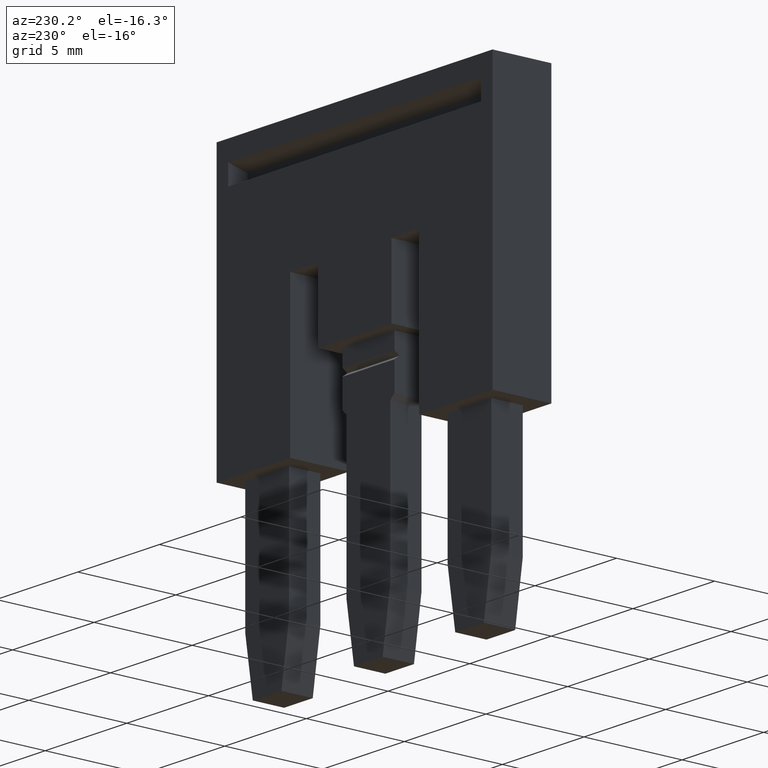
[diagram: clean part render]
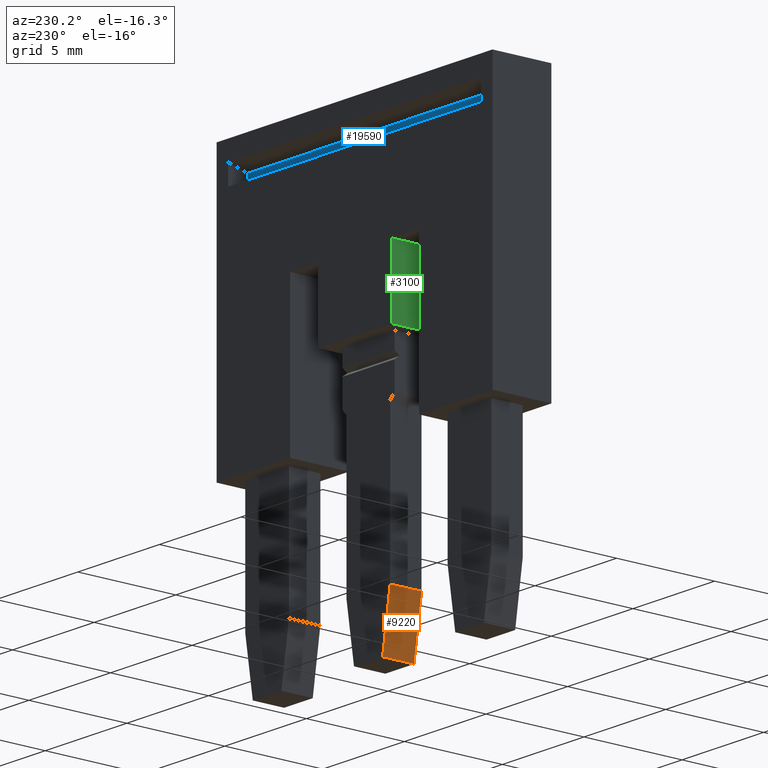
[diagram: same view with three faces highlighted in distinct colors, each labeled with its STEP entity id]
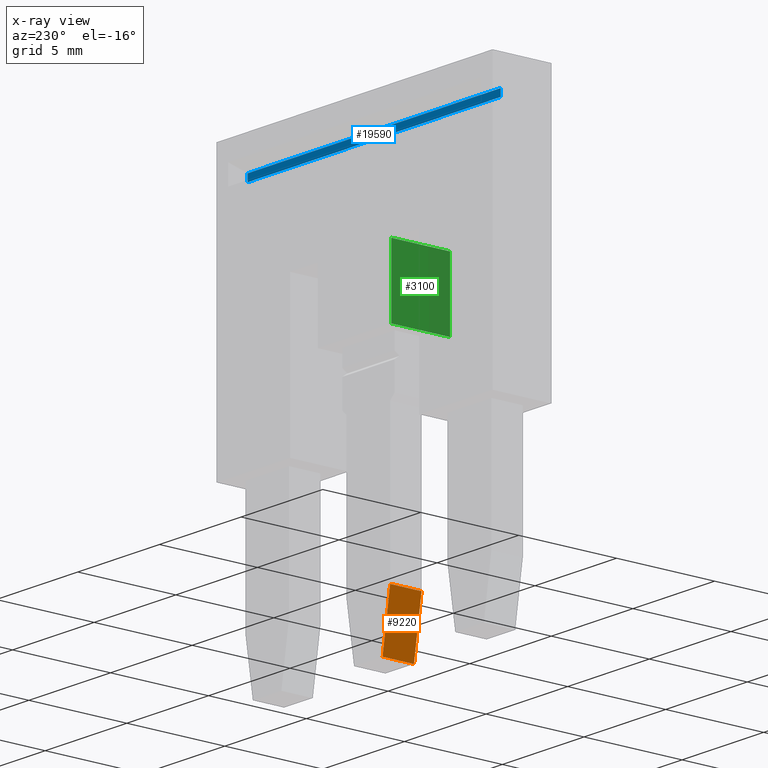
[diagram: x-ray of the same camera — body ghosted, the three highlighted faces saturated]
A machine part, auxiliary view with three faces highlighted in distinct colors.
The next image is the same camera in x-ray (body ghosted, the three faces saturated) — at least one of them is partly hidden behind the body in this view.
Their STEP definitions:

[orange] entity #9220 — the highlighted planar face has unit normal (0.9872, -0, 0.1594).
#7400=CARTESIAN_POINT('',(3.30716722169511,-29.2807420565088,
53.5999999999964));
#7410=VERTEX_POINT('',#7400);
#7440=CARTESIAN_POINT('',(3.30716722169511,-12.305124,56.3404020769704))
;
#7450=DIRECTION('',(-1.38777878078145E-17,0.987219178105449,
0.159368423411924));
#7460=VECTOR('',#7450,1.);
#7470=LINE('',#7440,#7460);
#7480=CARTESIAN_POINT('',(3.30716722169511,-32.1500000022916,
53.1368109480382));
#7490=VERTEX_POINT('',#7480);
#7500=EDGE_CURVE('',#7490,#7410,#7470,.T.);
#8720=CARTESIAN_POINT('',(4.9071672216951,-29.2807420565088,
53.5999999999964));
#8730=VERTEX_POINT('',#8720);
#8760=CARTESIAN_POINT('',(5.60716722168535,-29.2807420565088,
53.5999999999964));
#8770=DIRECTION('',(-1.,4.55169768507567E-15,-1.22464679914736E-16));
#8780=VECTOR('',#8770,1.);
#8790=LINE('',#8760,#8780);
#8800=EDGE_CURVE('',#8730,#7410,#8790,.T.);
#8990=CARTESIAN_POINT('',(3.47716482171337,-29.3736606429164,
53.5849999990342));
#9000=DIRECTION('',(8.46296364570585E-16,0.159368423411924,
-0.987219178105449));
#9010=DIRECTION('',(1.36619020727665E-16,-0.987219178105449,
-0.159368423411924));
#9020=AXIS2_PLACEMENT_3D('',#8990,#9000,#9010);
#9030=PLANE('',#9020);
#9040=CARTESIAN_POINT('',(5.60716722168535,-32.1500000022916,
53.1368109480382));
#9050=DIRECTION('',(1.,-2.26652267650109E-27,8.57252759406815E-16));
#9060=VECTOR('',#9050,1.);
#9070=LINE('',#9040,#9060);
#9080=CARTESIAN_POINT('',(4.9071672216951,-32.1500000022916,
53.1368109480382));
#9090=VERTEX_POINT('',#9080);
#9100=EDGE_CURVE('',#7490,#9090,#9070,.T.);
#9110=ORIENTED_EDGE('',*,*,#9100,.T.);
#9120=ORIENTED_EDGE('',*,*,#7500,.F.);
#9130=ORIENTED_EDGE('',*,*,#8800,.T.);
#9140=CARTESIAN_POINT('',(4.9071672216951,-12.305124,56.3404020769704));
#9150=DIRECTION('',(-1.38777878078145E-17,0.987219178105449,
0.159368423411924));
#9160=VECTOR('',#9150,1.);
#9170=LINE('',#9140,#9160);
#9180=EDGE_CURVE('',#9090,#8730,#9170,.T.);
#9190=ORIENTED_EDGE('',*,*,#9180,.T.);
#9200=EDGE_LOOP('',(#9190,#9130,#9120,#9110));
#9210=FACE_OUTER_BOUND('',#9200,.T.);
#9220=ADVANCED_FACE('',(#9210),#9030,.F.);

[blue] entity #19590 — the highlighted planar face has unit normal (0, -1, 0).
#18760=CARTESIAN_POINT('',(3.60716722168535,-10.7750000000004,
60.0099999999988));
#18770=VERTEX_POINT('',#18760);
#18800=CARTESIAN_POINT('',(3.60716722168535,-12.605124,60.0099999999988)
);
#18810=DIRECTION('',(4.22046870745915E-16,-1.,0.));
#18820=VECTOR('',#18810,1.);
#18830=LINE('',#18800,#18820);
#18840=CARTESIAN_POINT('',(3.60716722168535,-10.408974596216,
60.0099999999988));
#18850=VERTEX_POINT('',#18840);
#18860=EDGE_CURVE('',#18850,#18770,#18830,.T.);
#19110=CARTESIAN_POINT('',(3.60716722168535,-10.408974596216,
-0.0500000000000043));
#19120=DIRECTION('',(2.13821176807375E-50,1.22881688833192E-66,-1.));
#19130=VECTOR('',#19120,1.);
#19140=LINE('',#19110,#19130);
#19150=CARTESIAN_POINT('',(3.60716722168535,-10.408974596216,
44.5099999999988));
#19160=VERTEX_POINT('',#19150);
#19170=EDGE_CURVE('',#18850,#19160,#19140,.T.);
#19360=CARTESIAN_POINT('',(3.60716722168535,-10.7750000000004,
60.0099999999988));
#19370=DIRECTION('',(1.,4.22046870745915E-16,2.13821176807375E-50));
#19380=DIRECTION('',(-4.22046870745915E-16,1.,0.));
#19390=AXIS2_PLACEMENT_3D('',#19360,#19370,#19380);
#19400=PLANE('',#19390);
#19410=ORIENTED_EDGE('',*,*,#18860,.F.);
#19420=CARTESIAN_POINT('',(3.60716722168535,-10.7750000000004,
-0.0500000000000043));
#19430=DIRECTION('',(2.13821176807375E-50,0.,-1.));
#19440=VECTOR('',#19430,1.);
#19450=LINE('',#19420,#19440);
#19460=CARTESIAN_POINT('',(3.60716722168535,-10.7750000000004,
44.5099999999988));
#19470=VERTEX_POINT('',#19460);
#19480=EDGE_CURVE('',#18770,#19470,#19450,.T.);
#19490=ORIENTED_EDGE('',*,*,#19480,.F.);
#19500=CARTESIAN_POINT('',(3.60716722168534,-0.300000000000004,
44.5099999999988));
#19510=DIRECTION('',(-4.22046870745915E-16,1.,0.));
#19520=VECTOR('',#19510,1.);
#19530=LINE('',#19500,#19520);
#19540=EDGE_CURVE('',#19470,#19160,#19530,.T.);
#19550=ORIENTED_EDGE('',*,*,#19540,.F.);
#19560=ORIENTED_EDGE('',*,*,#19170,.T.);
#19570=EDGE_LOOP('',(#19560,#19550,#19490,#19410));
#19580=FACE_OUTER_BOUND('',#19570,.T.);
#19590=ADVANCED_FACE('',(#19580),#19400,.F.);

[green] entity #3100 — the highlighted planar face has unit normal (-1, -0, -0).
#1290=CARTESIAN_POINT('',(2.60716722168536,-15.4750000000004,
54.5099999999988));
#1300=VERTEX_POINT('',#1290);
#1470=CARTESIAN_POINT('',(5.60716722168537,-15.4750000000004,
54.5099999999988));
#1480=VERTEX_POINT('',#1470);
#1510=CARTESIAN_POINT('',(5.60716722168535,-15.4750000000004,
54.5099999999988));
#1520=DIRECTION('',(1.,0.,0.));
#1530=VECTOR('',#1520,1.);
#1540=LINE('',#1510,#1530);
#1550=EDGE_CURVE('',#1300,#1480,#1540,.T.);
#2070=CARTESIAN_POINT('',(2.60716722168536,-12.305124,54.5099999999988))
;
#2080=DIRECTION('',(0.,-1.,0.));
#2090=VECTOR('',#2080,1.);
#2100=LINE('',#2070,#2090);
#2110=CARTESIAN_POINT('',(2.60716722168536,-18.9750000000004,
54.5099999999988));
#2120=VERTEX_POINT('',#2110);
#2130=EDGE_CURVE('',#1300,#2120,#2100,.T.);
#2870=CARTESIAN_POINT('',(5.60716722168537,-15.1750000000004,
54.5099999999988));
#2880=DIRECTION('',(0.,-0.,1.));
#2890=DIRECTION('',(0.,1.,0.));
#2900=AXIS2_PLACEMENT_3D('',#2870,#2880,#2890);
#2910=PLANE('',#2900);
#2920=CARTESIAN_POINT('',(5.60716722168535,-18.9750000000004,
54.5099999999988));
#2930=DIRECTION('',(1.,0.,0.));
#2940=VECTOR('',#2930,1.);
#2950=LINE('',#2920,#2940);
#2960=CARTESIAN_POINT('',(5.60716722168537,-18.9750000000004,
54.5099999999988));
#2970=VERTEX_POINT('',#2960);
#2980=EDGE_CURVE('',#2120,#2970,#2950,.T.);
#2990=ORIENTED_EDGE('',*,*,#2980,.T.);
#3000=ORIENTED_EDGE('',*,*,#2130,.T.);
#3010=ORIENTED_EDGE('',*,*,#1550,.F.);
#3020=CARTESIAN_POINT('',(5.60716722168537,-12.305124,54.5099999999988))
;
#3030=DIRECTION('',(0.,-1.,0.));
#3040=VECTOR('',#3030,1.);
#3050=LINE('',#3020,#3040);
#3060=EDGE_CURVE('',#1480,#2970,#3050,.T.);
#3070=ORIENTED_EDGE('',*,*,#3060,.F.);
#3080=EDGE_LOOP('',(#3070,#3010,#3000,#2990));
#3090=FACE_OUTER_BOUND('',#3080,.T.);
#3100=ADVANCED_FACE('',(#3090),#2910,.T.);